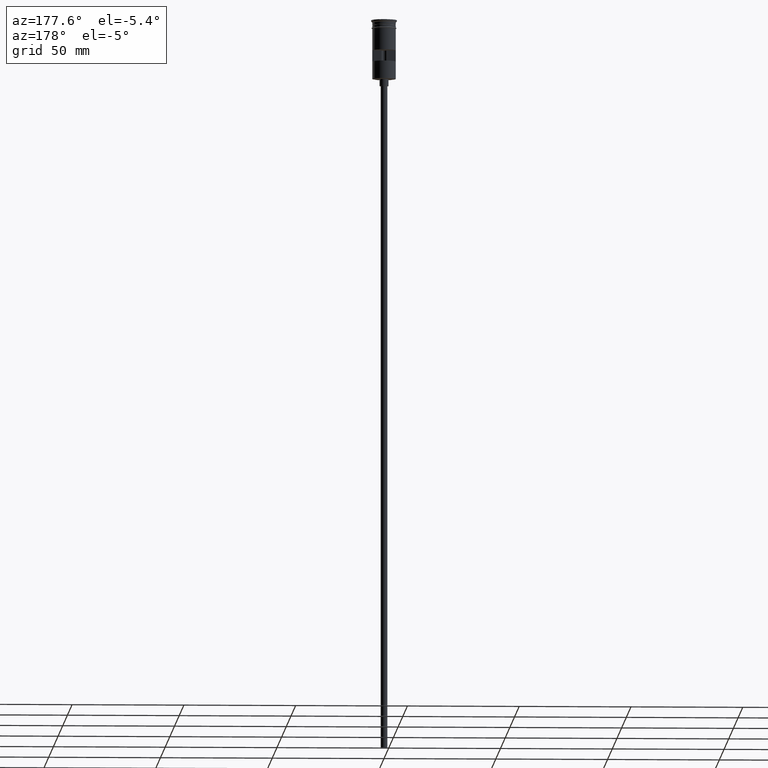
[diagram: clean part render]
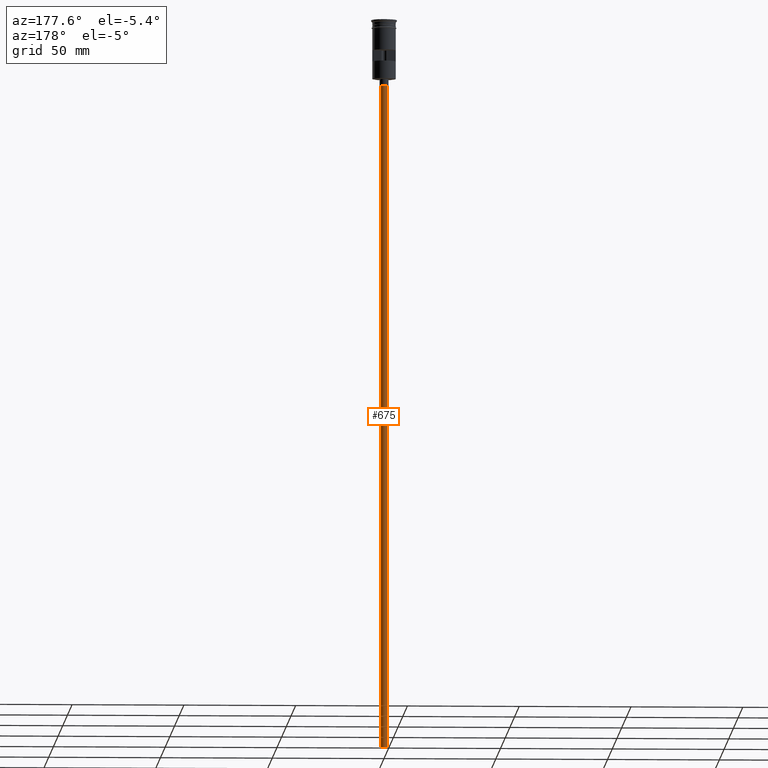
[diagram: same view with one face highlighted and labeled with its STEP entity id]
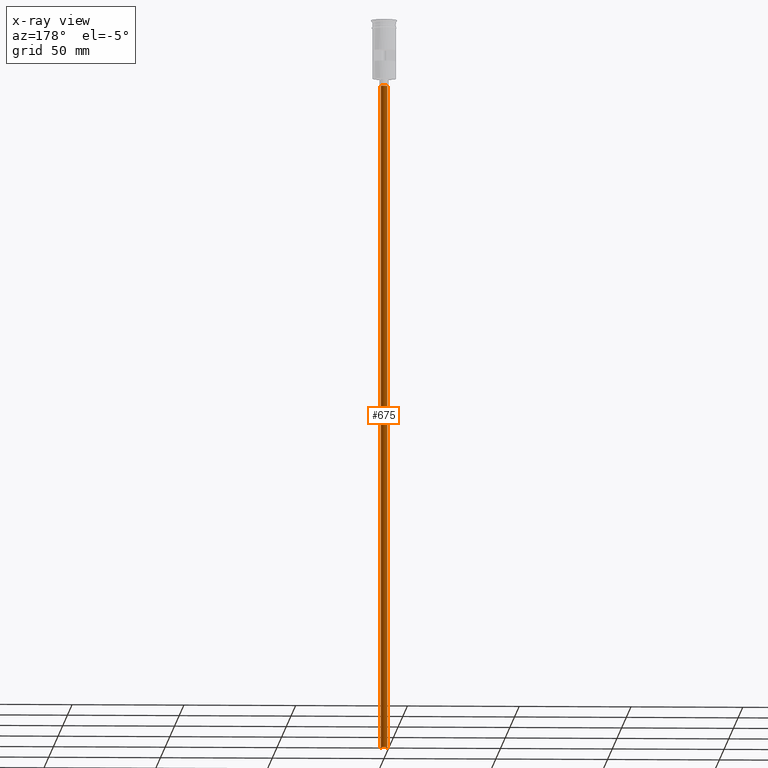
[diagram: x-ray of the same camera — body ghosted, the highlighted face saturated]
A machine part, auxiliary view. The second image highlights one B-rep face of the part: STEP entity #675.
The next image is the same camera in x-ray: the body ghosted, the highlighted face saturated — about 0% of this face is hidden behind the body in this view.
In plain terms, the highlighted cylindrical surface (edge-blend (fillet) strip) has radius 1.5 mm, axis along (-0, -0, 1).
Its self-contained STEP definition (entity closure, byte-faithful):
#1 = DIRECTION ( 'NONE',  ( 1.000000000000000000, 0.000000000000000000, 0.000000000000000000 ) ) ;
#9 = ORIENTED_EDGE ( 'NONE', *, *, #1510, .F. ) ;
#45 = EDGE_CURVE ( 'NONE', #1181, #90, #966, .T. ) ;
#81 = AXIS2_PLACEMENT_3D ( 'NONE', #1105, #1124, #227 ) ;
#84 = AXIS2_PLACEMENT_3D ( 'NONE', #747, #1104, #1 ) ;
#90 = VERTEX_POINT ( 'NONE', #1179 ) ;
#106 = VECTOR ( 'NONE', #1108, 1000.000000000000000 ) ;
#137 = EDGE_LOOP ( 'NONE', ( #1502, #1186, #246, #9 ) ) ;
#149 = CARTESIAN_POINT ( 'NONE',  ( 1.500000000000000222, 0.000000000000000000, -29.50000000000000000 ) ) ;
#227 = DIRECTION ( 'NONE',  ( -1.000000000000000000, 0.000000000000000000, 0.000000000000000000 ) ) ;
#237 = CIRCLE ( 'NONE', #81, 1.500000000000000222 ) ;
#246 = ORIENTED_EDGE ( 'NONE', *, *, #1185, .T. ) ;
#248 = DIRECTION ( 'NONE',  ( -1.000000000000000000, 0.000000000000000000, 0.000000000000000000 ) ) ;
#354 = DIRECTION ( 'NONE',  ( -0.000000000000000000, -0.000000000000000000, 1.000000000000000000 ) ) ;
#370 = EDGE_CURVE ( 'NONE', #1181, #521, #237, .T. ) ;
#439 = VERTEX_POINT ( 'NONE', #149 ) ;
#470 = CYLINDRICAL_SURFACE ( 'NONE', #84, 1.500000000000000222 ) ;
#521 = VERTEX_POINT ( 'NONE', #697 ) ;
#610 = CARTESIAN_POINT ( 'NONE',  ( -1.500000000000000222, 1.836970198721030181E-16, -326.5000000000000000 ) ) ;
#616 = CARTESIAN_POINT ( 'NONE',  ( 0.000000000000000000, 0.000000000000000000, -29.50000000000000000 ) ) ;
#675 = ADVANCED_FACE ( 'NONE', ( #1208 ), #470, .T. ) ;
#697 = CARTESIAN_POINT ( 'NONE',  ( 1.500000000000000222, 0.000000000000000000, -326.5000000000000000 ) ) ;
#738 = VECTOR ( 'NONE', #354, 1000.000000000000000 ) ;
#747 = CARTESIAN_POINT ( 'NONE',  ( 0.000000000000000000, 0.000000000000000000, -326.5000000000000000 ) ) ;
#859 = CARTESIAN_POINT ( 'NONE',  ( 1.500000000000000222, 0.000000000000000000, -326.5000000000000000 ) ) ;
#966 = LINE ( 'NONE', #1487, #106 ) ;
#1096 = DIRECTION ( 'NONE',  ( 0.000000000000000000, 0.000000000000000000, -1.000000000000000000 ) ) ;
#1104 = DIRECTION ( 'NONE',  ( -0.000000000000000000, -0.000000000000000000, 1.000000000000000000 ) ) ;
#1105 = CARTESIAN_POINT ( 'NONE',  ( 0.000000000000000000, 0.000000000000000000, -326.5000000000000000 ) ) ;
#1108 = DIRECTION ( 'NONE',  ( -0.000000000000000000, -0.000000000000000000, 1.000000000000000000 ) ) ;
#1116 = CIRCLE ( 'NONE', #1243, 1.500000000000000222 ) ;
#1124 = DIRECTION ( 'NONE',  ( 0.000000000000000000, 0.000000000000000000, -1.000000000000000000 ) ) ;
#1179 = CARTESIAN_POINT ( 'NONE',  ( -1.500000000000000222, 1.836970198721030181E-16, -29.50000000000000000 ) ) ;
#1181 = VERTEX_POINT ( 'NONE', #610 ) ;
#1185 = EDGE_CURVE ( 'NONE', #90, #439, #1116, .T. ) ;
#1186 = ORIENTED_EDGE ( 'NONE', *, *, #45, .T. ) ;
#1208 = FACE_OUTER_BOUND ( 'NONE', #137, .T. ) ;
#1243 = AXIS2_PLACEMENT_3D ( 'NONE', #616, #1096, #248 ) ;
#1463 = LINE ( 'NONE', #859, #738 ) ;
#1487 = CARTESIAN_POINT ( 'NONE',  ( -1.500000000000000222, 1.836970198721030181E-16, -326.5000000000000000 ) ) ;
#1502 = ORIENTED_EDGE ( 'NONE', *, *, #370, .F. ) ;
#1510 = EDGE_CURVE ( 'NONE', #521, #439, #1463, .T. ) ;